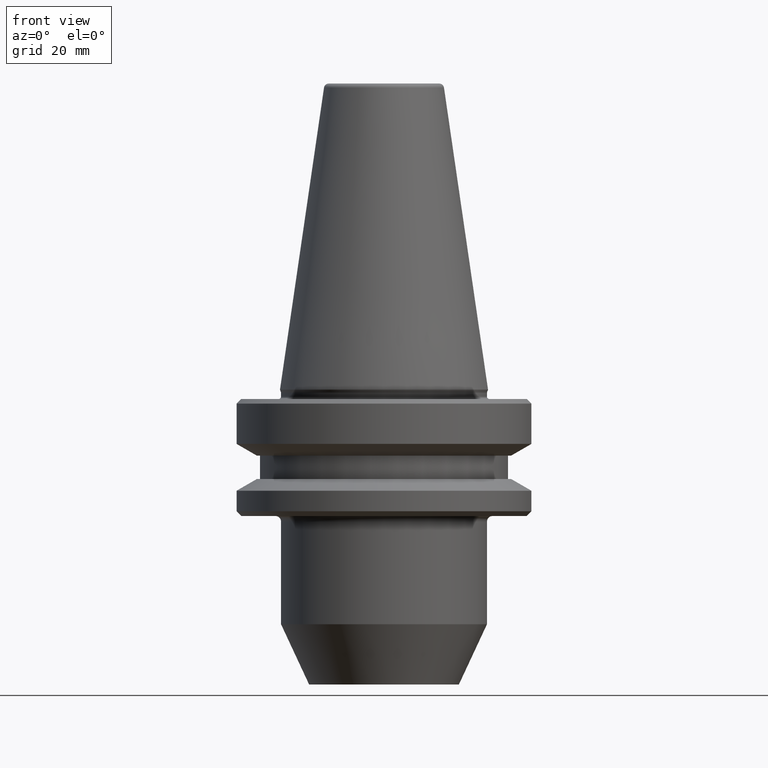
[diagram: clean part render]
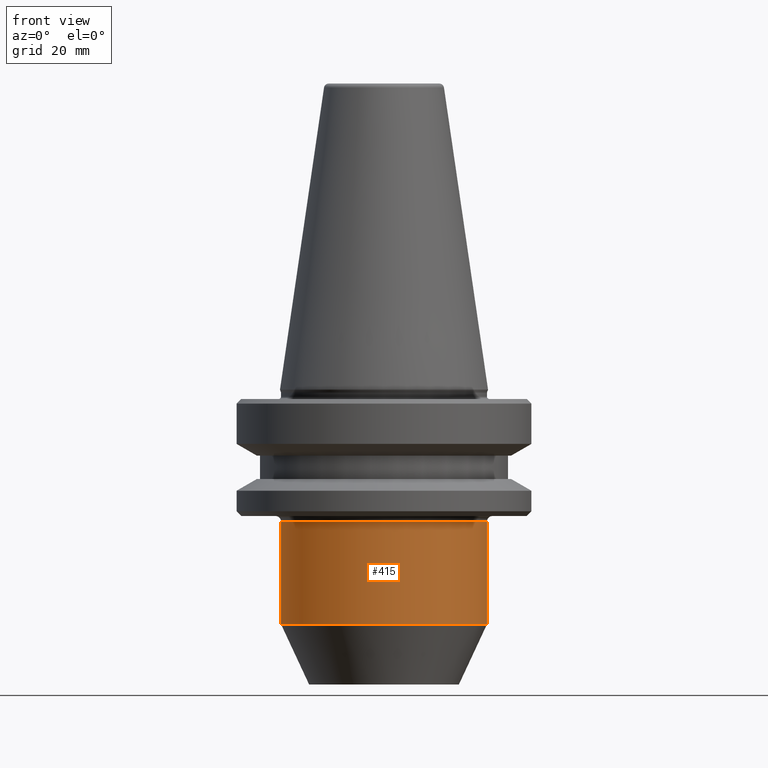
[diagram: same view with one face highlighted and labeled with its STEP entity id]
A machine part, front view. The second image highlights one B-rep face of the part: STEP entity #415.
In plain terms, the highlighted cylindrical surface (partial cylindrical patch) has radius 22 mm, axis along (-0, -0, 1).
Its self-contained STEP definition (entity closure, byte-faithful):
#11 = VERTEX_POINT ( 'NONE', #963 ) ;
#21 = CARTESIAN_POINT ( 'NONE',  ( 22.00000000000000000, 0.0000000000000000000, -49.44424526528279500 ) ) ;
#51 = LINE ( 'NONE', #758, #877 ) ;
#58 = DIRECTION ( 'NONE',  ( 1.000000000000000000, 0.0000000000000000000, 0.0000000000000000000 ) ) ;
#70 = VECTOR ( 'NONE', #487, 1000.000000000000000 ) ;
#126 = DIRECTION ( 'NONE',  ( -0.0000000000000000000, -0.0000000000000000000, 1.000000000000000000 ) ) ;
#129 = EDGE_CURVE ( 'NONE', #418, #543, #911, .T. ) ;
#163 = DIRECTION ( 'NONE',  ( 1.000000000000000000, 0.0000000000000000000, 0.0000000000000000000 ) ) ;
#296 = FACE_OUTER_BOUND ( 'NONE', #805, .T. ) ;
#302 = CARTESIAN_POINT ( 'NONE',  ( -22.00000000000000000, 2.694222958124176800E-015, -27.51128678844369400 ) ) ;
#309 = AXIS2_PLACEMENT_3D ( 'NONE', #668, #406, #58 ) ;
#359 = AXIS2_PLACEMENT_3D ( 'NONE', #553, #769, #447 ) ;
#367 = EDGE_CURVE ( 'NONE', #418, #840, #778, .T. ) ;
#370 = EDGE_CURVE ( 'NONE', #543, #11, #966, .T. ) ;
#383 = AXIS2_PLACEMENT_3D ( 'NONE', #1003, #126, #163 ) ;
#406 = DIRECTION ( 'NONE',  ( -0.0000000000000000000, -0.0000000000000000000, 1.000000000000000000 ) ) ;
#415 = ADVANCED_FACE ( 'NONE', ( #296 ), #710, .T. ) ;
#418 = VERTEX_POINT ( 'NONE', #679 ) ;
#447 = DIRECTION ( 'NONE',  ( 1.000000000000000000, 0.0000000000000000000, 0.0000000000000000000 ) ) ;
#458 = ORIENTED_EDGE ( 'NONE', *, *, #370, .F. ) ;
#487 = DIRECTION ( 'NONE',  ( -0.0000000000000000000, -0.0000000000000000000, 1.000000000000000000 ) ) ;
#503 = EDGE_CURVE ( 'NONE', #840, #11, #51, .T. ) ;
#543 = VERTEX_POINT ( 'NONE', #302 ) ;
#553 = CARTESIAN_POINT ( 'NONE',  ( 0.0000000000000000000, 0.0000000000000000000, -27.51128678844369400 ) ) ;
#562 = CARTESIAN_POINT ( 'NONE',  ( -22.00000000000000000, 2.694222958124176800E-015, 82.74845858742440900 ) ) ;
#616 = DIRECTION ( 'NONE',  ( -0.0000000000000000000, -0.0000000000000000000, 1.000000000000000000 ) ) ;
#654 = ORIENTED_EDGE ( 'NONE', *, *, #503, .T. ) ;
#668 = CARTESIAN_POINT ( 'NONE',  ( 0.0000000000000000000, 0.0000000000000000000, 82.74845858742440900 ) ) ;
#679 = CARTESIAN_POINT ( 'NONE',  ( -22.00000000000000000, 2.694222958124176800E-015, -49.44424526528279500 ) ) ;
#710 = CYLINDRICAL_SURFACE ( 'NONE', #309, 22.00000000000000000 ) ;
#758 = CARTESIAN_POINT ( 'NONE',  ( 22.00000000000000000, 0.0000000000000000000, 82.74845858742440900 ) ) ;
#769 = DIRECTION ( 'NONE',  ( -0.0000000000000000000, -0.0000000000000000000, 1.000000000000000000 ) ) ;
#773 = ORIENTED_EDGE ( 'NONE', *, *, #367, .T. ) ;
#778 = CIRCLE ( 'NONE', #383, 22.00000000000000000 ) ;
#805 = EDGE_LOOP ( 'NONE', ( #1047, #773, #654, #458 ) ) ;
#840 = VERTEX_POINT ( 'NONE', #21 ) ;
#877 = VECTOR ( 'NONE', #616, 1000.000000000000000 ) ;
#911 = LINE ( 'NONE', #562, #70 ) ;
#963 = CARTESIAN_POINT ( 'NONE',  ( 22.00000000000000000, 0.0000000000000000000, -27.51128678844369400 ) ) ;
#966 = CIRCLE ( 'NONE', #359, 22.00000000000000000 ) ;
#1003 = CARTESIAN_POINT ( 'NONE',  ( 0.0000000000000000000, 0.0000000000000000000, -49.44424526528279500 ) ) ;
#1047 = ORIENTED_EDGE ( 'NONE', *, *, #129, .F. ) ;